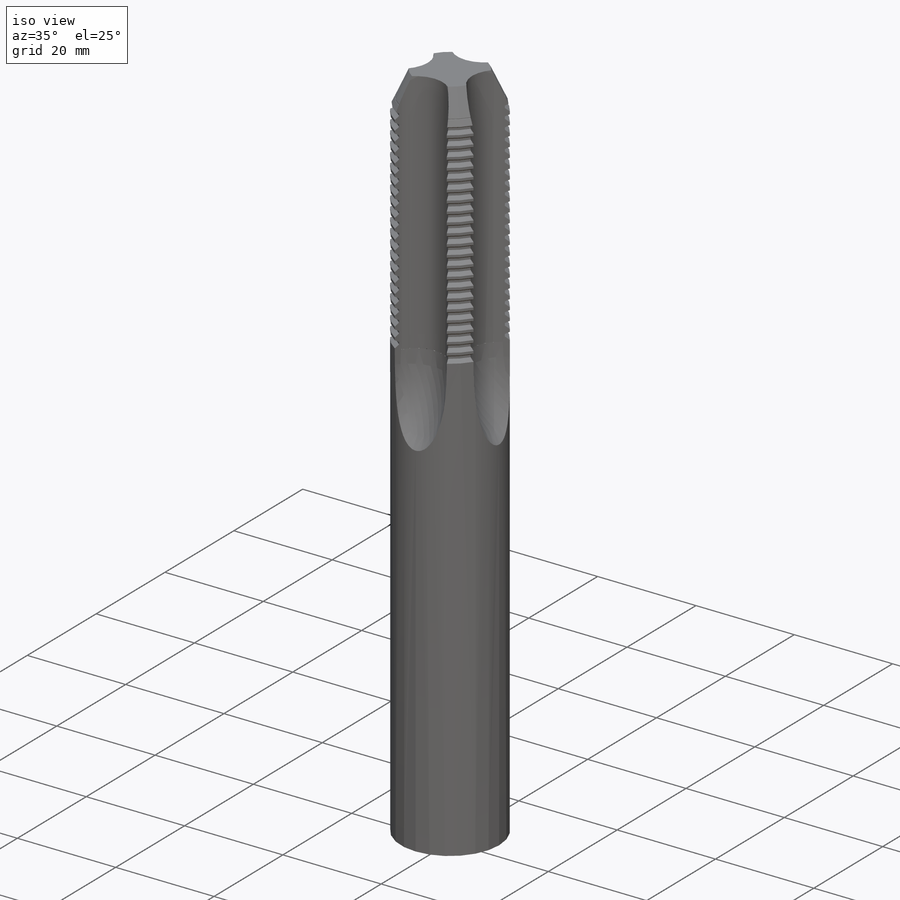
[diagram: iso view]
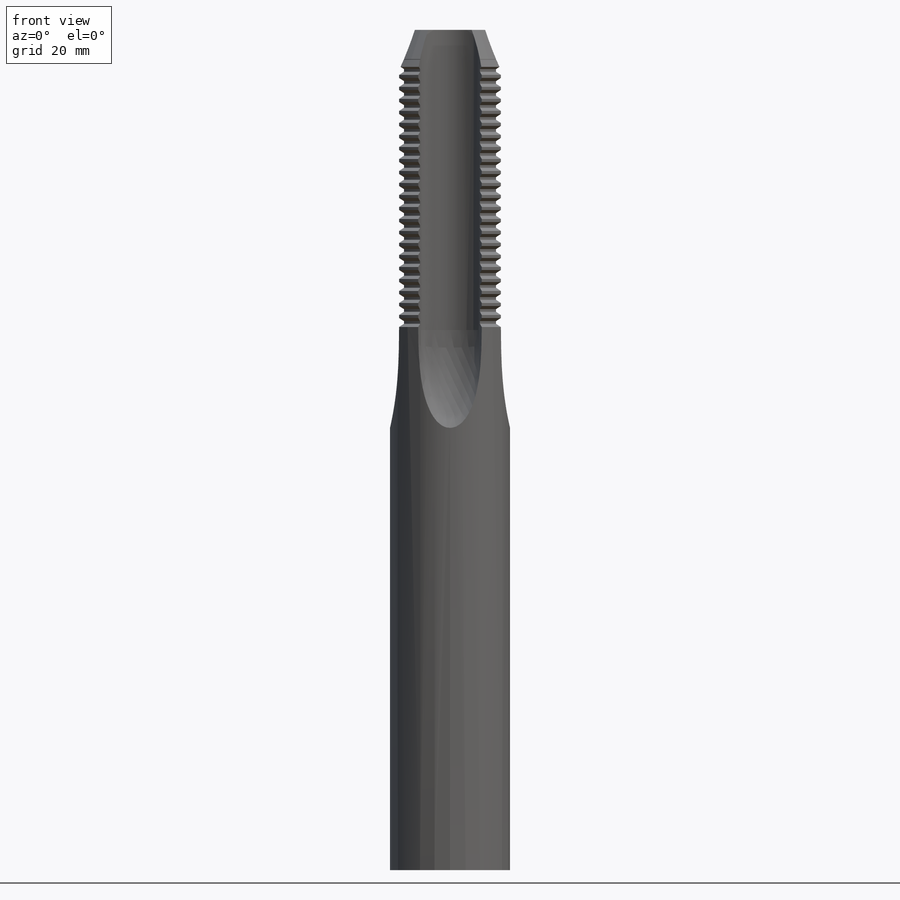
[diagram: front view]
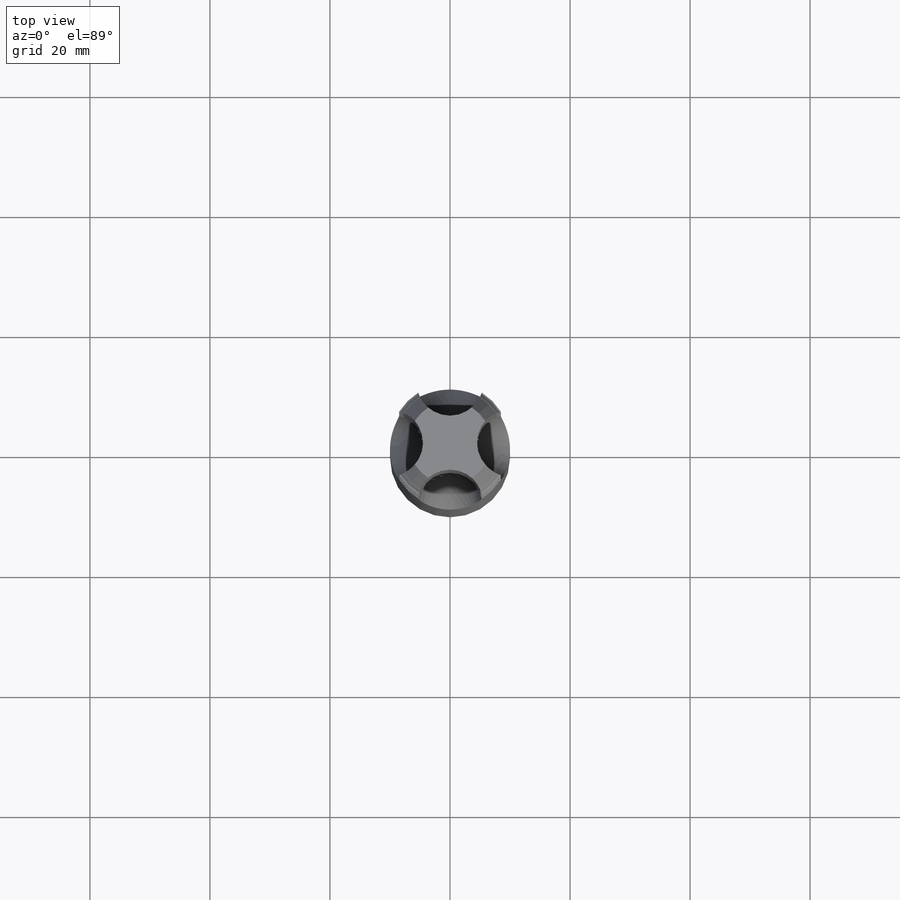
[diagram: top view]
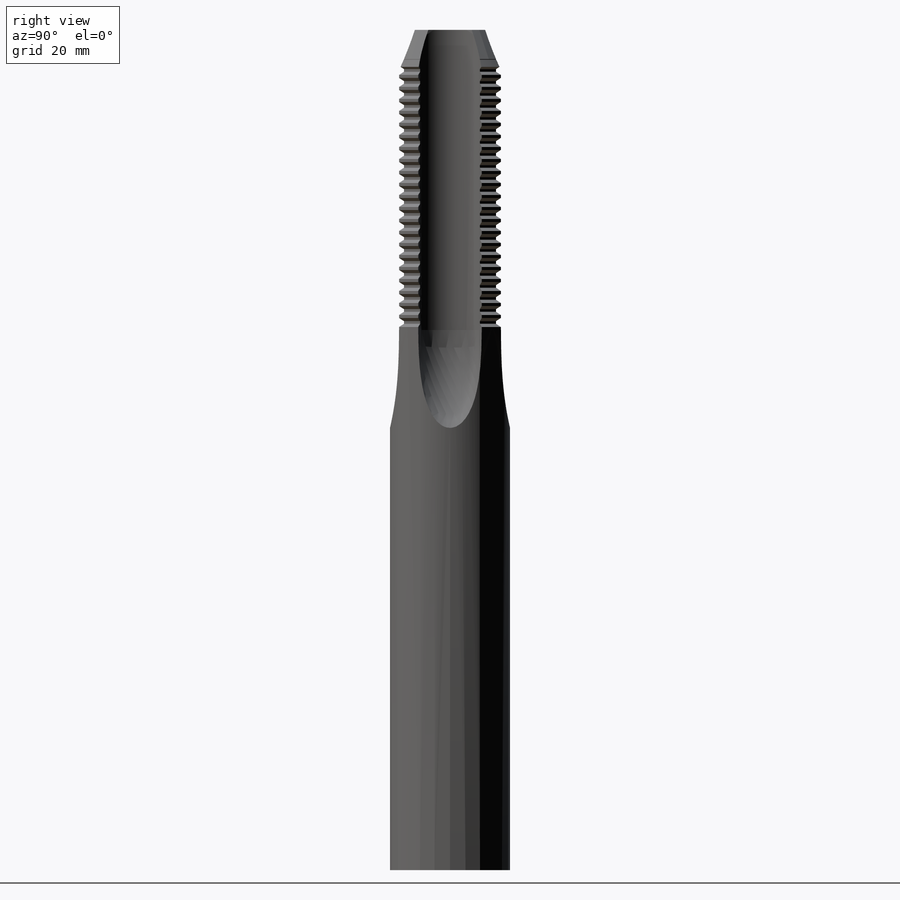
[diagram: right view]
SOLIDWORKS PART (.sldprt)
format: sldprt  version: not decoded by parser v0  size: 617,984 bytes
history: native  units: mm
features: sketch x6, plane x3, cut_revolve x2, material x1, revolve x1, sweep x1, pattern_circular x1 (+10 scaffold rows collapsed)
feature tree (25):
  scaffold x10  (default folders/planes/origin — collapsed)
  material  "材质 <未指定>"
  plane  "前视基准面"
  plane  "上视基准面"
  plane  "右视基准面"
  sketch  "草图1"  dims[D1=140.0mm D2=20.0mm]
  revolve  "旋转1"  Angle=360deg
  sketch  "草图2"
  sketch  "草图3"  dims[D1=21.0mm]
  sketch  "草图6"  dims[D1=50.0mm]
  sweep  "切除-扫描3"
  pattern_circular  "阵列(圆周)2"  Count=4  [1 undecoded]
  sketch  "草图8"  dims[c1.D1=~1.180418mm c1.D2=~1.392704mm c1.D3=~1.363029mm c2.D3=1.0mm c2.D1=1.0mm c2.D2=2.0mm c3.D3=0.5mm c3.D2=1.5mm c3.D4=2.5mm c3.D1=1.5mm c4.D2=1.0mm c4.D3=2.0mm]
  cut_revolve  "切除-旋转5"  [1 undecoded]
  sketch  "草图10"
  cut_revolve  "切除-旋转7"  [1 undecoded]
decode coverage: 6 of 11 modeling features carry decoded parameters
note: ~ marks probable driven/reference dimensions
note: 3 parameter values undecoded
note: suppression state not decoded; provenance and decode notes live in map.json
